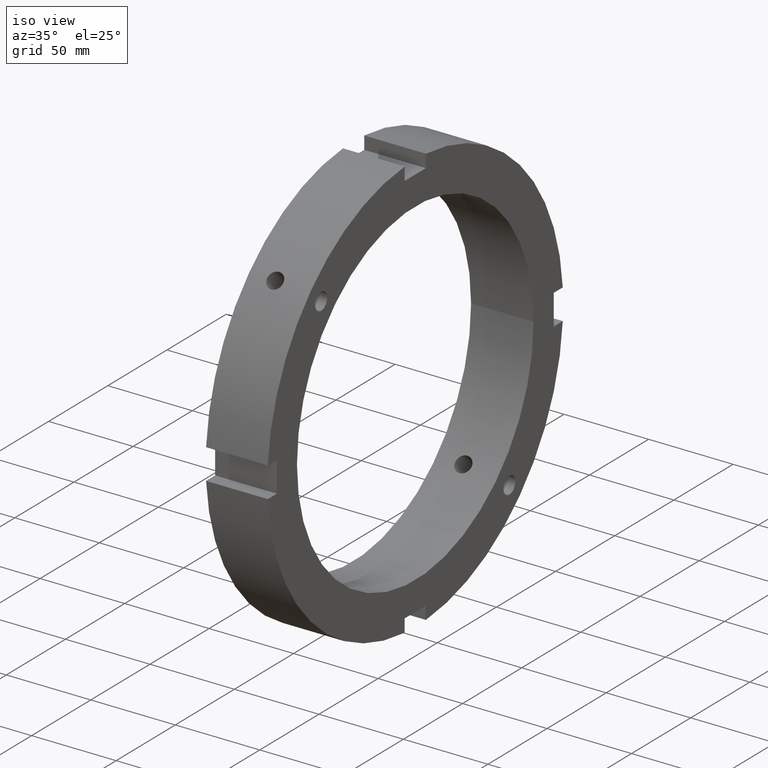
[diagram: clean part render]
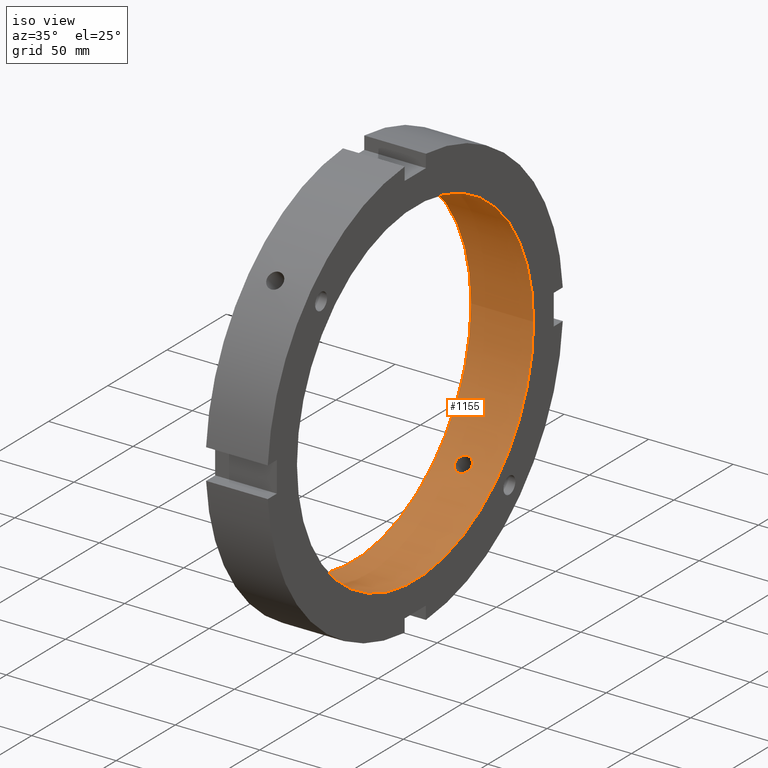
[diagram: same view with one face highlighted and labeled with its STEP entity id]
A machine part, iso view. The second image highlights one B-rep face of the part: STEP entity #1155.
In plain terms, the highlighted cylindrical surface (bore or boss wall) has radius 100 mm, axis along (1, 0, 0).
Its self-contained STEP definition (entity closure, byte-faithful):
#248=CARTESIAN_POINT('',(15.999999999999979,-74.023284992815533,67.235059893424719));
#249=VERTEX_POINT('',#248);
#250=CARTESIAN_POINT('',(15.999999999999979,-74.023284992815519,67.235059893424733));
#251=CARTESIAN_POINT('',(16.60279811131387,-74.023284992815519,67.235059893424733));
#252=CARTESIAN_POINT('',(17.245712329034614,-73.942342395068138,67.324513489120463));
#253=CARTESIAN_POINT('',(18.428305731572394,-73.611316971484385,67.686292032287298));
#254=CARTESIAN_POINT('',(18.967992763828889,-73.361016450792846,67.958392070424964));
#255=CARTESIAN_POINT('',(19.820232259121472,-72.778857663911154,68.581481936176033));
#256=CARTESIAN_POINT('',(20.189625293534419,-72.408135556840222,68.973992599121033));
#257=CARTESIAN_POINT('',(20.679511726963703,-71.587279692322412,69.825576518442233));
#258=CARTESIAN_POINT('',(20.799999999999979,-71.136920674388733,70.284435562920777));
#259=CARTESIAN_POINT('',(20.799999999999979,-70.284435562920706,71.13692067438879));
#260=CARTESIAN_POINT('',(20.6795117269637,-69.825576518442134,71.587279692322497));
#261=CARTESIAN_POINT('',(20.189625293534416,-68.973992599120933,72.408135556840293));
#262=CARTESIAN_POINT('',(19.820232259121468,-68.581481936175948,72.778857663911197));
#263=CARTESIAN_POINT('',(18.967992763828889,-67.958392070424892,73.361016450792903));
#264=CARTESIAN_POINT('',(18.428305731572401,-67.686292032287213,73.611316971484456));
#265=CARTESIAN_POINT('',(17.245712329034617,-67.324513489120378,73.942342395068209));
#266=CARTESIAN_POINT('',(16.60279811131387,-67.235059893424648,74.023284992815604));
#267=CARTESIAN_POINT('',(15.397201888686087,-67.235059893424648,74.023284992815604));
#268=CARTESIAN_POINT('',(14.75428767096534,-67.324513489120378,73.942342395068209));
#269=CARTESIAN_POINT('',(13.571694268427557,-67.686292032287213,73.611316971484456));
#270=CARTESIAN_POINT('',(13.03200723617107,-67.958392070424892,73.361016450792903));
#271=CARTESIAN_POINT('',(12.179767740878489,-68.581481936175948,72.778857663911197));
#272=CARTESIAN_POINT('',(11.810374706465542,-68.973992599120933,72.408135556840293));
#273=CARTESIAN_POINT('',(11.320488273036256,-69.825576518442134,71.587279692322497));
#274=CARTESIAN_POINT('',(11.199999999999978,-70.284435562920706,71.13692067438879));
#275=CARTESIAN_POINT('',(11.199999999999978,-71.136920674388733,70.284435562920777));
#276=CARTESIAN_POINT('',(11.320488273036254,-71.587279692322426,69.825576518442233));
#277=CARTESIAN_POINT('',(11.810374706465527,-72.408135556840222,68.973992599121033));
#278=CARTESIAN_POINT('',(12.179767740878493,-72.778857663911111,68.581481936176061));
#279=CARTESIAN_POINT('',(13.032007236171069,-73.361016450792818,67.958392070424978));
#280=CARTESIAN_POINT('',(13.571694268427553,-73.611316971484385,67.686292032287298));
#281=CARTESIAN_POINT('',(14.75428767096534,-73.942342395068138,67.324513489120463));
#282=CARTESIAN_POINT('',(15.397201888686089,-74.023284992815533,67.235059893424733));
#283=CARTESIAN_POINT('',(15.99999999999998,-74.023284992815533,67.235059893424733));
#284=B_SPLINE_CURVE_WITH_KNOTS('',3,(#250,#251,#252,#253,#254,#255,#256,#257,#258,#259,#260,#261,#262,#263,#264,#265,#266,#267,#268,#269,#270,#271,#272,#273,#274,#275,#276,#277,#278,#279,#280,#281,#282,#283),.UNSPECIFIED.,.T.,.U.,(4,2,2,2,2,2,2,2,2,2,2,2,2,2,2,2,4),(0.0,0.180839433394167,0.361678866788334,0.542518267742217,0.723357668696099,0.90419706964998,1.085036470603861,1.265875903998029,1.446715337392196,1.627554770786364,1.808394204180531,1.989233605134412,2.170073006088293,2.350912407042173,2.531751807996054,2.712591241390222,2.89343067478439),.UNSPECIFIED.);
#285=EDGE_CURVE('',#249,#249,#284,.T.);
#470=CARTESIAN_POINT('',(15.999999999999979,67.235059893424705,-74.023284992815547));
#471=VERTEX_POINT('',#470);
#472=CARTESIAN_POINT('',(15.999999999999977,67.23505989342469,-74.023284992815547));
#473=CARTESIAN_POINT('',(15.397201888686087,67.23505989342469,-74.023284992815547));
#474=CARTESIAN_POINT('',(14.754287670965351,67.32451348912042,-73.942342395068167));
#475=CARTESIAN_POINT('',(13.571694268427573,67.686292032287255,-73.611316971484428));
#476=CARTESIAN_POINT('',(13.03200723617107,67.958392070424907,-73.361016450792889));
#477=CARTESIAN_POINT('',(12.179767740878482,68.581481936175962,-72.778857663911197));
#478=CARTESIAN_POINT('',(11.810374706465559,68.973992599120976,-72.408135556840264));
#479=CARTESIAN_POINT('',(11.320488273036261,69.825576518442176,-71.587279692322468));
#480=CARTESIAN_POINT('',(11.199999999999978,70.284435562920734,-71.136920674388762));
#481=CARTESIAN_POINT('',(11.199999999999978,71.136920674388747,-70.284435562920748));
#482=CARTESIAN_POINT('',(11.320488273036254,71.587279692322468,-69.825576518442205));
#483=CARTESIAN_POINT('',(11.810374706465527,72.40813555684025,-68.973992599121004));
#484=CARTESIAN_POINT('',(12.179767740878493,72.778857663911154,-68.581481936176019));
#485=CARTESIAN_POINT('',(13.032007236171069,73.361016450792846,-67.958392070424935));
#486=CARTESIAN_POINT('',(13.571694268427548,73.611316971484428,-67.686292032287255));
#487=CARTESIAN_POINT('',(14.754287670965331,73.942342395068167,-67.32451348912042));
#488=CARTESIAN_POINT('',(15.397201888686086,74.023284992815562,-67.23505989342469));
#489=CARTESIAN_POINT('',(16.602798111313867,74.023284992815562,-67.23505989342469));
#490=CARTESIAN_POINT('',(17.245712329034614,73.942342395068167,-67.32451348912042));
#491=CARTESIAN_POINT('',(18.428305731572397,73.611316971484428,-67.686292032287255));
#492=CARTESIAN_POINT('',(18.967992763828889,73.361016450792889,-67.958392070424921));
#493=CARTESIAN_POINT('',(19.820232259121475,72.778857663911197,-68.581481936175976));
#494=CARTESIAN_POINT('',(20.189625293534416,72.40813555684025,-68.973992599120976));
#495=CARTESIAN_POINT('',(20.679511726963703,71.58727969232244,-69.825576518442205));
#496=CARTESIAN_POINT('',(20.799999999999979,71.136920674388762,-70.284435562920748));
#497=CARTESIAN_POINT('',(20.799999999999979,70.284435562920734,-71.136920674388762));
#498=CARTESIAN_POINT('',(20.6795117269637,69.82557651844219,-71.587279692322468));
#499=CARTESIAN_POINT('',(20.189625293534419,68.973992599120976,-72.408135556840264));
#500=CARTESIAN_POINT('',(19.820232259121468,68.581481936176004,-72.778857663911154));
#501=CARTESIAN_POINT('',(18.967992763828889,67.958392070424935,-73.36101645079286));
#502=CARTESIAN_POINT('',(18.428305731572415,67.686292032287255,-73.611316971484428));
#503=CARTESIAN_POINT('',(17.245712329034625,67.32451348912042,-73.942342395068181));
#504=CARTESIAN_POINT('',(16.602798111313874,67.23505989342469,-74.023284992815562));
#505=CARTESIAN_POINT('',(15.999999999999979,67.23505989342469,-74.023284992815562));
#506=B_SPLINE_CURVE_WITH_KNOTS('',3,(#472,#473,#474,#475,#476,#477,#478,#479,#480,#481,#482,#483,#484,#485,#486,#487,#488,#489,#490,#491,#492,#493,#494,#495,#496,#497,#498,#499,#500,#501,#502,#503,#504,#505),.UNSPECIFIED.,.T.,.U.,(4,2,2,2,2,2,2,2,2,2,2,2,2,2,2,2,4),(0.0,0.180839433394167,0.361678866788334,0.542518267742217,0.723357668696099,0.90419706964998,1.08503647060386,1.265875903998028,1.446715337392196,1.627554770786363,1.80839420418053,1.989233605134413,2.170073006088296,2.350912407042176,2.531751807996057,2.712591241390225,2.893430674784392),.UNSPECIFIED.);
#507=EDGE_CURVE('',#471,#471,#506,.T.);
#986=CARTESIAN_POINT('',(36.999999999999979,100.0,0.0));
#987=VERTEX_POINT('',#986);
#988=CARTESIAN_POINT('',(36.999999999999979,0.0,0.0));
#989=DIRECTION('',(1.0,0.0,0.0));
#990=DIRECTION('',(0.0,1.0,0.0));
#991=AXIS2_PLACEMENT_3D('',#988,#989,#990);
#992=CIRCLE('',#991,100.0);
#993=EDGE_CURVE('',#987,#987,#992,.T.);
#1079=CARTESIAN_POINT('',(-2.972252E-014,100.0,0.0));
#1080=VERTEX_POINT('',#1079);
#1081=CARTESIAN_POINT('',(-2.972449E-014,0.0,0.0));
#1082=DIRECTION('',(1.0,0.0,0.0));
#1083=DIRECTION('',(0.0,1.0,0.0));
#1084=AXIS2_PLACEMENT_3D('',#1081,#1082,#1083);
#1085=CIRCLE('',#1084,100.0);
#1086=EDGE_CURVE('',#1080,#1080,#1085,.T.);
#1138=CARTESIAN_POINT('',(18.499999999999975,0.0,0.0));
#1139=DIRECTION('',(1.0,0.0,0.0));
#1140=DIRECTION('',(0.0,1.0,0.0));
#1141=AXIS2_PLACEMENT_3D('',#1138,#1139,#1140);
#1142=CYLINDRICAL_SURFACE('',#1141,100.0);
#1143=ORIENTED_EDGE('',*,*,#1086,.F.);
#1144=EDGE_LOOP('',(#1143));
#1145=FACE_OUTER_BOUND('',#1144,.T.);
#1146=ORIENTED_EDGE('',*,*,#285,.T.);
#1147=EDGE_LOOP('',(#1146));
#1148=FACE_BOUND('',#1147,.T.);
#1149=ORIENTED_EDGE('',*,*,#507,.T.);
#1150=EDGE_LOOP('',(#1149));
#1151=FACE_BOUND('',#1150,.T.);
#1152=ORIENTED_EDGE('',*,*,#993,.T.);
#1153=EDGE_LOOP('',(#1152));
#1154=FACE_BOUND('',#1153,.T.);
#1155=ADVANCED_FACE('',(#1145,#1148,#1151,#1154),#1142,.F.);